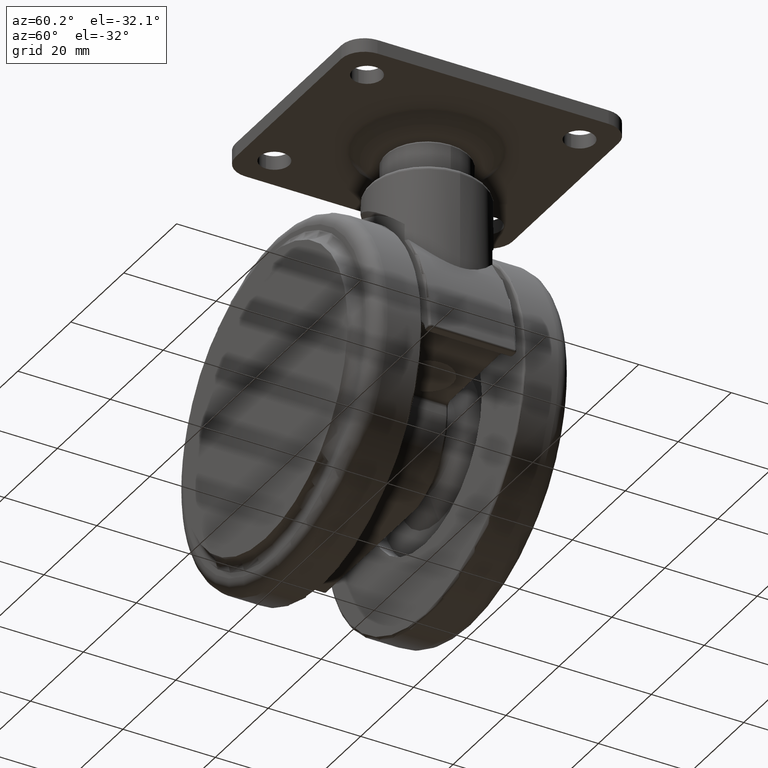
[diagram: clean part render]
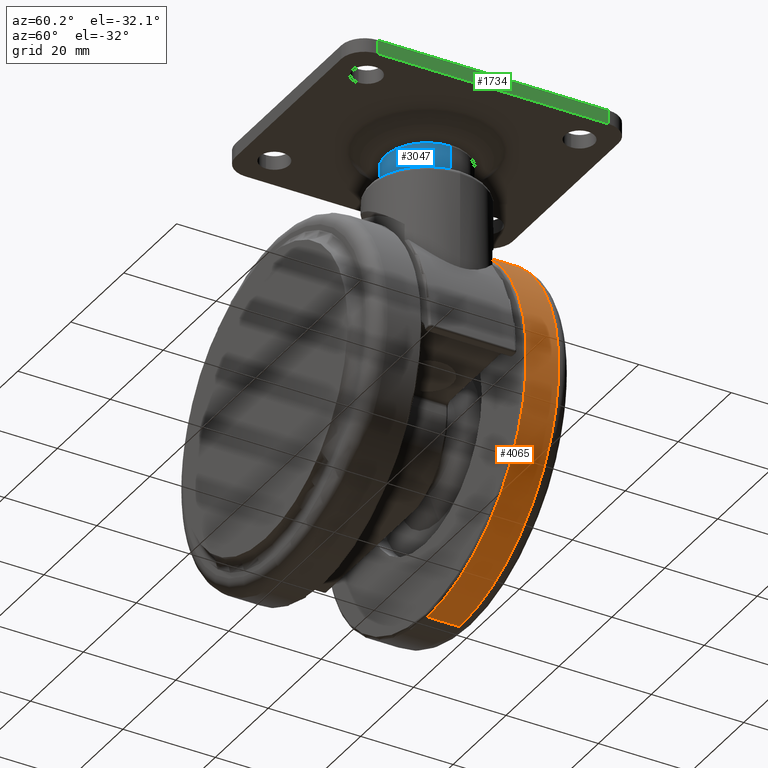
[diagram: same view with three faces highlighted in distinct colors, each labeled with its STEP entity id]
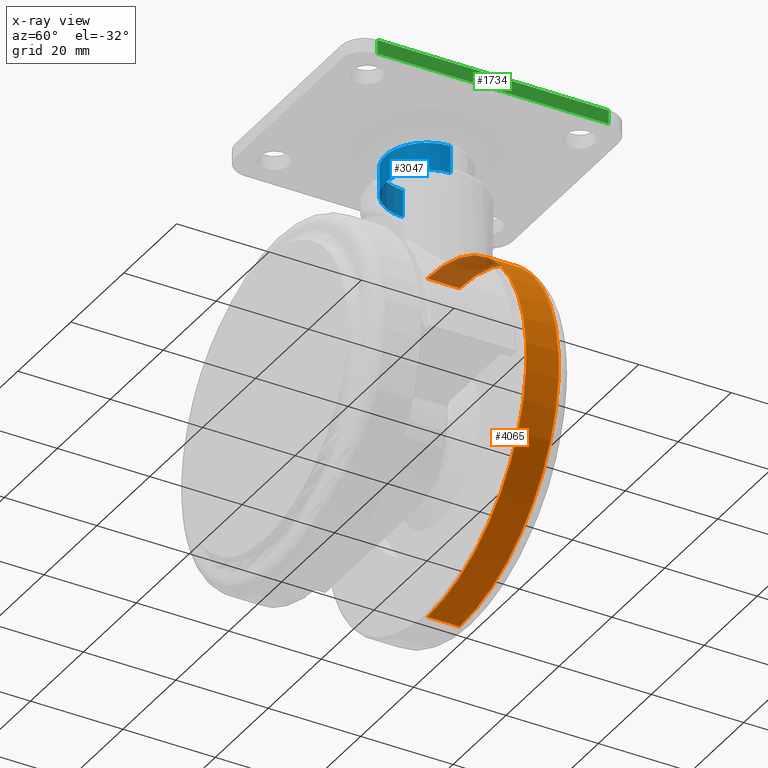
[diagram: x-ray of the same camera — body ghosted, the three highlighted faces saturated]
A machine part, auxiliary view with three faces highlighted in distinct colors.
The next image is the same camera in x-ray (body ghosted, the three faces saturated) — at least one of them is partly hidden behind the body in this view.
Their STEP definitions:

[orange] entity #4065 — the highlighted cylindrical surface (partial cylindrical patch) has radius 37.5 mm, axis along (0, 1, 0).
#162 = ORIENTED_EDGE ( 'NONE', *, *, #2361, .T. ) ;
#348 = VERTEX_POINT ( 'NONE', #4197 ) ;
#524 = DIRECTION ( 'NONE',  ( -1.582413479254075000E-015, -1.000000000000000000, 0.0000000000000000000 ) ) ;
#571 = FACE_OUTER_BOUND ( 'NONE', #2747, .T. ) ;
#600 = DIRECTION ( 'NONE',  ( 0.0000000000000000000, 0.0000000000000000000, -1.000000000000000000 ) ) ;
#819 = CARTESIAN_POINT ( 'NONE',  ( -20.00000000000000000, 11.50000000000000000, -40.50000000000000000 ) ) ;
#852 = CARTESIAN_POINT ( 'NONE',  ( -20.00000000000000000, 18.50000000000000000, -78.00000000000001400 ) ) ;
#933 = CARTESIAN_POINT ( 'NONE',  ( -20.00000000000000000, 3.164826958508150300E-014, -40.50000000000000000 ) ) ;
#954 = EDGE_CURVE ( 'NONE', #1355, #3707, #2362, .T. ) ;
#1166 = DIRECTION ( 'NONE',  ( 0.0000000000000000000, 0.0000000000000000000, -1.000000000000000000 ) ) ;
#1355 = VERTEX_POINT ( 'NONE', #852 ) ;
#1448 = LINE ( 'NONE', #1713, #3129 ) ;
#1512 = EDGE_CURVE ( 'NONE', #348, #1910, #3637, .T. ) ;
#1713 = CARTESIAN_POINT ( 'NONE',  ( -20.00000000000000400, 3.164826958508150900E-014, -3.000000000000002700 ) ) ;
#1737 = CARTESIAN_POINT ( 'NONE',  ( -19.99999999999998200, 11.50000000000000000, -3.000000000000002700 ) ) ;
#1910 = VERTEX_POINT ( 'NONE', #1737 ) ;
#1932 = CARTESIAN_POINT ( 'NONE',  ( -20.00000000000000400, 18.50000000000000000, -3.000000000000000400 ) ) ;
#2099 = ORIENTED_EDGE ( 'NONE', *, *, #1512, .F. ) ;
#2361 = EDGE_CURVE ( 'NONE', #348, #1355, #2758, .T. ) ;
#2362 = CIRCLE ( 'NONE', #4274, 37.50000000000000000 ) ;
#2526 = CARTESIAN_POINT ( 'NONE',  ( -20.00000000000000000, 18.50000000000000000, -40.50000000000000000 ) ) ;
#2535 = EDGE_CURVE ( 'NONE', #1910, #3707, #1448, .T. ) ;
#2605 = AXIS2_PLACEMENT_3D ( 'NONE', #933, #3277, #600 ) ;
#2747 = EDGE_LOOP ( 'NONE', ( #3275, #2099, #162, #3010 ) ) ;
#2758 = LINE ( 'NONE', #3174, #3651 ) ;
#2803 = AXIS2_PLACEMENT_3D ( 'NONE', #819, #3168, #1166 ) ;
#2871 = DIRECTION ( 'NONE',  ( 0.0000000000000000000, 0.0000000000000000000, -1.000000000000000000 ) ) ;
#3010 = ORIENTED_EDGE ( 'NONE', *, *, #954, .T. ) ;
#3126 = CYLINDRICAL_SURFACE ( 'NONE', #2605, 37.50000000000000000 ) ;
#3129 = VECTOR ( 'NONE', #4033, 1000.000000000000000 ) ;
#3168 = DIRECTION ( 'NONE',  ( -1.582413479254075000E-015, -1.000000000000000000, 0.0000000000000000000 ) ) ;
#3174 = CARTESIAN_POINT ( 'NONE',  ( -20.00000000000000000, 3.164826958508150300E-014, -78.00000000000000000 ) ) ;
#3275 = ORIENTED_EDGE ( 'NONE', *, *, #2535, .F. ) ;
#3277 = DIRECTION ( 'NONE',  ( 1.582413479254075000E-015, 1.000000000000000000, 0.0000000000000000000 ) ) ;
#3637 = CIRCLE ( 'NONE', #2803, 37.50000000000000000 ) ;
#3651 = VECTOR ( 'NONE', #4282, 1000.000000000000000 ) ;
#3707 = VERTEX_POINT ( 'NONE', #1932 ) ;
#4033 = DIRECTION ( 'NONE',  ( 1.582413479254075000E-015, 1.000000000000000000, 0.0000000000000000000 ) ) ;
#4065 = ADVANCED_FACE ( 'NONE', ( #571 ), #3126, .T. ) ;
#4197 = CARTESIAN_POINT ( 'NONE',  ( -20.00000000000000000, 11.50000000000000000, -78.00000000000000000 ) ) ;
#4274 = AXIS2_PLACEMENT_3D ( 'NONE', #2526, #524, #2871 ) ;
#4282 = DIRECTION ( 'NONE',  ( 1.582413479254075000E-015, 1.000000000000000000, 0.0000000000000000000 ) ) ;

[blue] entity #3047 — the highlighted cylindrical surface (partial cylindrical patch) has radius 9 mm, axis along (0, 0, -1).
#46 = CARTESIAN_POINT ( 'NONE',  ( 9.000000000000000000, 1.102182119232617700E-015, 0.0000000000000000000 ) ) ;
#86 = VERTEX_POINT ( 'NONE', #1372 ) ;
#127 = DIRECTION ( 'NONE',  ( -1.000000000000000000, 0.0000000000000000000, 0.0000000000000000000 ) ) ;
#232 = ORIENTED_EDGE ( 'NONE', *, *, #666, .F. ) ;
#581 = ORIENTED_EDGE ( 'NONE', *, *, #810, .T. ) ;
#601 = VERTEX_POINT ( 'NONE', #2875 ) ;
#652 = ORIENTED_EDGE ( 'NONE', *, *, #2552, .F. ) ;
#666 = EDGE_CURVE ( 'NONE', #601, #86, #3953, .T. ) ;
#728 = CARTESIAN_POINT ( 'NONE',  ( -9.000000000000000000, 0.0000000000000000000, 7.000000000000000000 ) ) ;
#753 = FACE_OUTER_BOUND ( 'NONE', #3873, .T. ) ;
#757 = CIRCLE ( 'NONE', #1019, 9.000000000000000000 ) ;
#790 = DIRECTION ( 'NONE',  ( 0.0000000000000000000, 0.0000000000000000000, -1.000000000000000000 ) ) ;
#810 = EDGE_CURVE ( 'NONE', #3831, #86, #2919, .T. ) ;
#1019 = AXIS2_PLACEMENT_3D ( 'NONE', #2877, #1913, #4237 ) ;
#1238 = DIRECTION ( 'NONE',  ( 0.0000000000000000000, 0.0000000000000000000, -1.000000000000000000 ) ) ;
#1256 = VECTOR ( 'NONE', #2394, 1000.000000000000000 ) ;
#1262 = DIRECTION ( 'NONE',  ( 0.0000000000000000000, 0.0000000000000000000, -1.000000000000000000 ) ) ;
#1372 = CARTESIAN_POINT ( 'NONE',  ( -9.000000000000001800, 0.0000000000000000000, 1.000000000000512000 ) ) ;
#1676 = AXIS2_PLACEMENT_3D ( 'NONE', #3269, #1262, #3602 ) ;
#1780 = VERTEX_POINT ( 'NONE', #2341 ) ;
#1806 = VECTOR ( 'NONE', #1238, 1000.000000000000000 ) ;
#1844 = ORIENTED_EDGE ( 'NONE', *, *, #4013, .T. ) ;
#1913 = DIRECTION ( 'NONE',  ( 0.0000000000000000000, 0.0000000000000000000, -1.000000000000000000 ) ) ;
#2134 = LINE ( 'NONE', #46, #1256 ) ;
#2334 = CYLINDRICAL_SURFACE ( 'NONE', #2470, 9.000000000000000000 ) ;
#2341 = CARTESIAN_POINT ( 'NONE',  ( 9.000000000000000000, 1.102182119232617700E-015, 7.000000000000000000 ) ) ;
#2394 = DIRECTION ( 'NONE',  ( 0.0000000000000000000, 0.0000000000000000000, -1.000000000000000000 ) ) ;
#2470 = AXIS2_PLACEMENT_3D ( 'NONE', #4129, #790, #127 ) ;
#2552 = EDGE_CURVE ( 'NONE', #1780, #601, #2134, .T. ) ;
#2875 = CARTESIAN_POINT ( 'NONE',  ( 9.000000000000001800, 1.102182119232617700E-015, 1.000000000000512000 ) ) ;
#2877 = CARTESIAN_POINT ( 'NONE',  ( 0.0000000000000000000, 0.0000000000000000000, 7.000000000000000000 ) ) ;
#2919 = LINE ( 'NONE', #3244, #1806 ) ;
#3047 = ADVANCED_FACE ( 'NONE', ( #753 ), #2334, .T. ) ;
#3244 = CARTESIAN_POINT ( 'NONE',  ( -9.000000000000000000, 0.0000000000000000000, 0.0000000000000000000 ) ) ;
#3269 = CARTESIAN_POINT ( 'NONE',  ( 0.0000000000000000000, 0.0000000000000000000, 1.000000000000512000 ) ) ;
#3602 = DIRECTION ( 'NONE',  ( -1.000000000000000000, 0.0000000000000000000, 0.0000000000000000000 ) ) ;
#3831 = VERTEX_POINT ( 'NONE', #728 ) ;
#3873 = EDGE_LOOP ( 'NONE', ( #652, #1844, #581, #232 ) ) ;
#3953 = CIRCLE ( 'NONE', #1676, 9.000000000000000000 ) ;
#4013 = EDGE_CURVE ( 'NONE', #1780, #3831, #757, .T. ) ;
#4129 = CARTESIAN_POINT ( 'NONE',  ( 0.0000000000000000000, 0.0000000000000000000, 0.0000000000000000000 ) ) ;
#4237 = DIRECTION ( 'NONE',  ( -1.000000000000000000, 0.0000000000000000000, 0.0000000000000000000 ) ) ;

[green] entity #1734 — the highlighted planar face has unit normal (-1, 0, 0).
#35 = ORIENTED_EDGE ( 'NONE', *, *, #275, .F. ) ;
#275 = EDGE_CURVE ( 'NONE', #2667, #1838, #1249, .T. ) ;
#318 = CARTESIAN_POINT ( 'NONE',  ( 25.00000000000000000, -25.00000000000000000, 1010.999999999999900 ) ) ;
#388 = VECTOR ( 'NONE', #3229, 1000.000000000000000 ) ;
#428 = CARTESIAN_POINT ( 'NONE',  ( 25.00000000000000000, 25.00000000000000000, 14.00000000000000000 ) ) ;
#466 = PLANE ( 'NONE',  #2997 ) ;
#559 = ORIENTED_EDGE ( 'NONE', *, *, #1589, .T. ) ;
#662 = DIRECTION ( 'NONE',  ( 0.0000000000000000000, 0.0000000000000000000, 1.000000000000000000 ) ) ;
#847 = CARTESIAN_POINT ( 'NONE',  ( 25.00000000000000000, -25.00000000000000000, 11.00000000000011900 ) ) ;
#861 = CARTESIAN_POINT ( 'NONE',  ( 25.00000000000000000, 25.00000000000000000, 1010.999999999999900 ) ) ;
#945 = VECTOR ( 'NONE', #1718, 1000.000000000000000 ) ;
#1007 = ORIENTED_EDGE ( 'NONE', *, *, #2857, .T. ) ;
#1059 = VECTOR ( 'NONE', #3128, 1000.000000000000000 ) ;
#1131 = CARTESIAN_POINT ( 'NONE',  ( 25.00000000000000000, -25.00000000000000000, 14.00000000000000000 ) ) ;
#1231 = EDGE_LOOP ( 'NONE', ( #559, #35, #1353, #1007 ) ) ;
#1249 = LINE ( 'NONE', #861, #3790 ) ;
#1353 = ORIENTED_EDGE ( 'NONE', *, *, #1472, .F. ) ;
#1363 = CARTESIAN_POINT ( 'NONE',  ( 25.00000000000000000, 25.00000000000000000, 11.00000000000011900 ) ) ;
#1472 = EDGE_CURVE ( 'NONE', #3620, #2667, #1958, .T. ) ;
#1589 = EDGE_CURVE ( 'NONE', #3089, #1838, #2712, .T. ) ;
#1718 = DIRECTION ( 'NONE',  ( -0.0000000000000000000, 1.000000000000000000, -0.0000000000000000000 ) ) ;
#1734 = ADVANCED_FACE ( 'NONE', ( #4169 ), #466, .F. ) ;
#1838 = VERTEX_POINT ( 'NONE', #1363 ) ;
#1958 = LINE ( 'NONE', #1131, #1059 ) ;
#2400 = CARTESIAN_POINT ( 'NONE',  ( 25.00000000000000000, -25.00000000000000000, 11.00000000000011900 ) ) ;
#2568 = CARTESIAN_POINT ( 'NONE',  ( 25.00000000000000000, -25.00000000000000000, 14.00000000000000000 ) ) ;
#2667 = VERTEX_POINT ( 'NONE', #428 ) ;
#2675 = DIRECTION ( 'NONE',  ( -1.000000000000000000, 0.0000000000000000000, 0.0000000000000000000 ) ) ;
#2712 = LINE ( 'NONE', #2400, #945 ) ;
#2857 = EDGE_CURVE ( 'NONE', #3620, #3089, #3857, .T. ) ;
#2997 = AXIS2_PLACEMENT_3D ( 'NONE', #318, #2675, #662 ) ;
#3089 = VERTEX_POINT ( 'NONE', #847 ) ;
#3128 = DIRECTION ( 'NONE',  ( -0.0000000000000000000, 1.000000000000000000, -0.0000000000000000000 ) ) ;
#3161 = DIRECTION ( 'NONE',  ( 0.0000000000000000000, 0.0000000000000000000, -1.000000000000000000 ) ) ;
#3229 = DIRECTION ( 'NONE',  ( 0.0000000000000000000, 0.0000000000000000000, -1.000000000000000000 ) ) ;
#3620 = VERTEX_POINT ( 'NONE', #2568 ) ;
#3790 = VECTOR ( 'NONE', #3161, 1000.000000000000000 ) ;
#3857 = LINE ( 'NONE', #4229, #388 ) ;
#4169 = FACE_OUTER_BOUND ( 'NONE', #1231, .T. ) ;
#4229 = CARTESIAN_POINT ( 'NONE',  ( 25.00000000000000000, -25.00000000000000000, 1010.999999999999900 ) ) ;